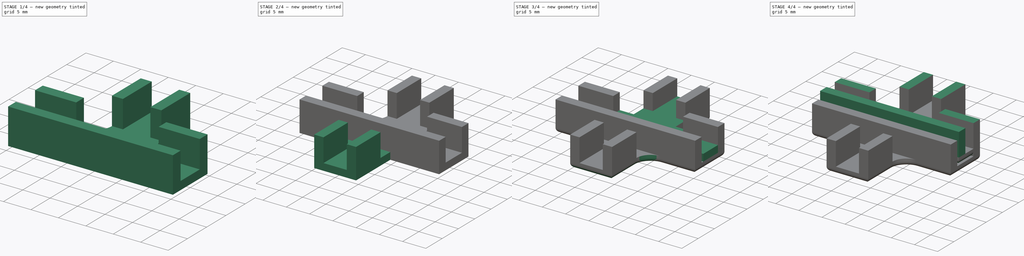
[diagram: build sequence overview — one tinted view per stage of 4, left to right]
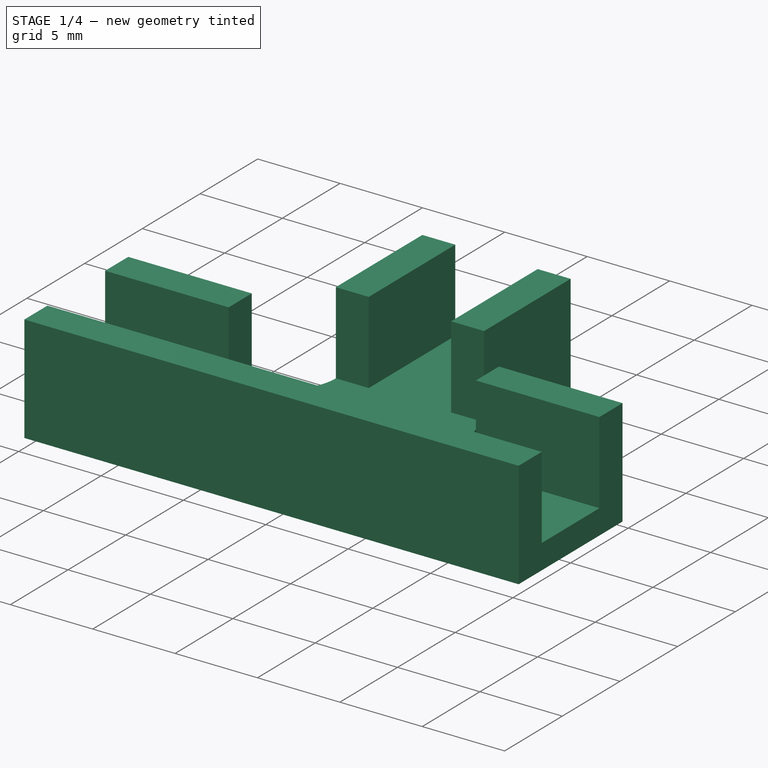
[diagram: stage 1 of 4 — iso view after this stage's code; geometry added in this stage tinted green]
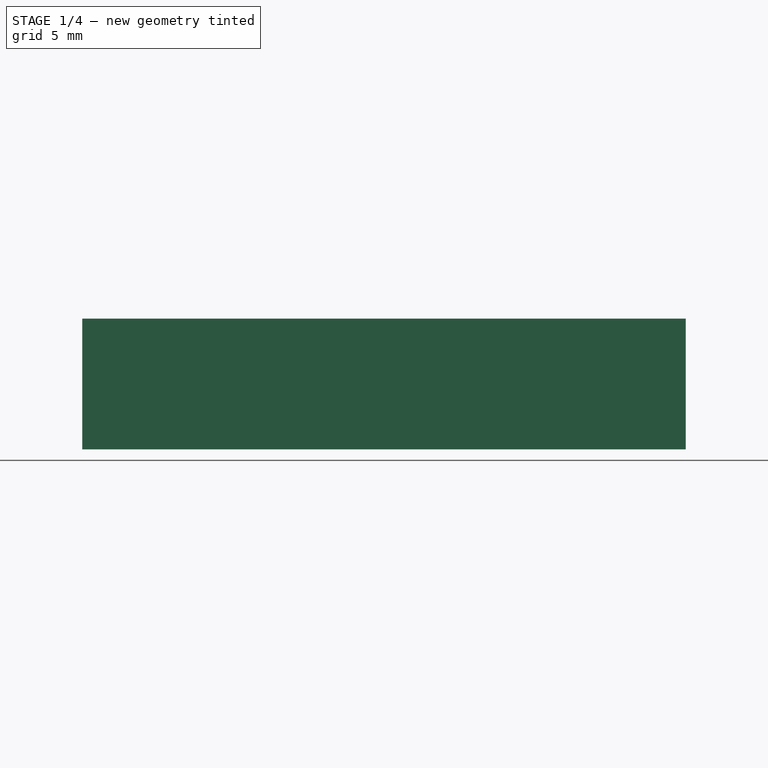
[diagram: stage 1 of 4 — front view after this stage's code; geometry added in this stage tinted green]
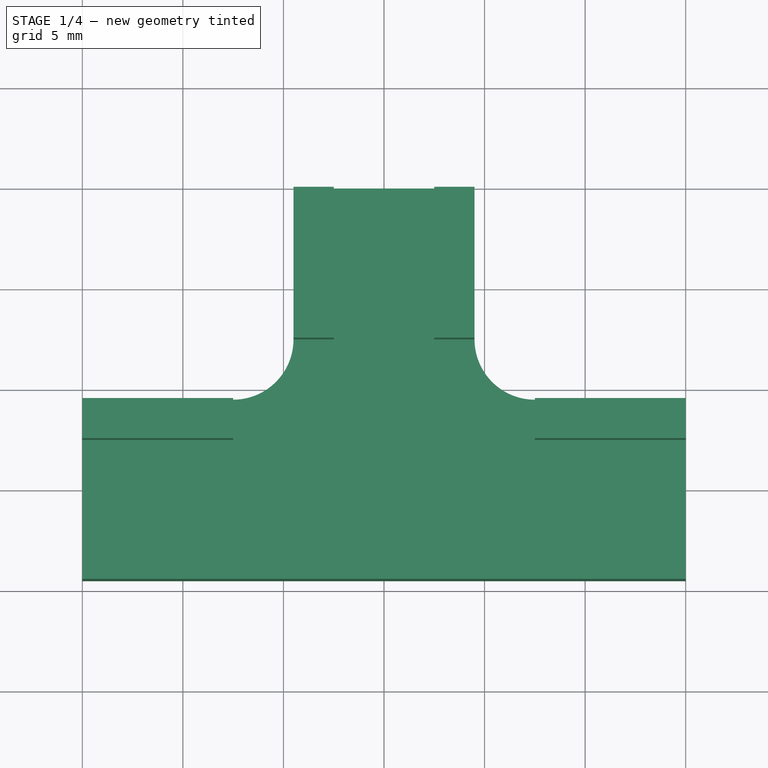
[diagram: stage 1 of 4 — top view after this stage's code; geometry added in this stage tinted green]
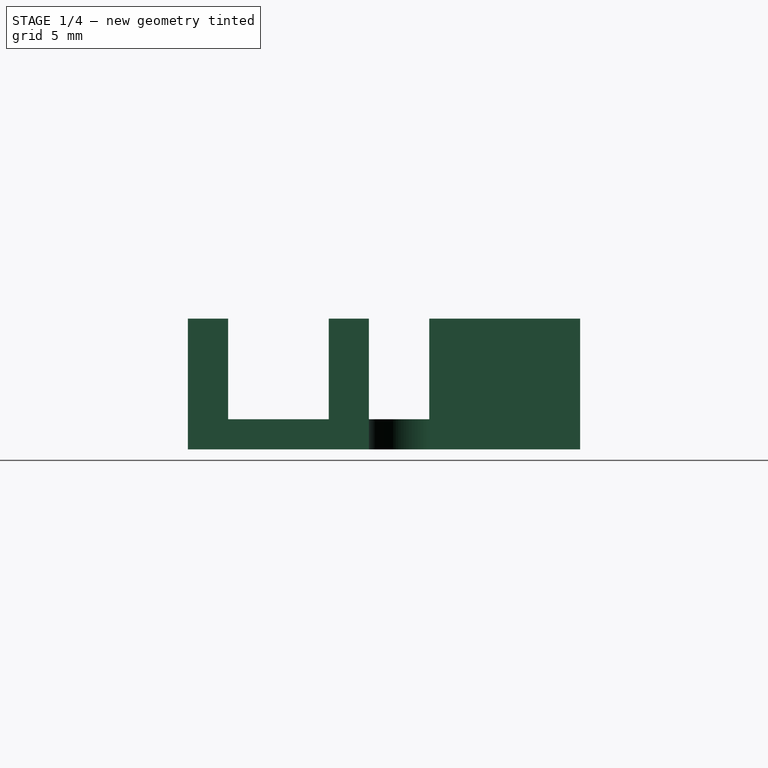
[diagram: stage 1 of 4 — right view after this stage's code; geometry added in this stage tinted green]
FCSTD DOCUMENT  (FreeCAD 0.18R16131 (Git))
Label: box-connectors
License: All rights reserved
LicenseURL: http://en.wikipedia.org/wiki/All_rights_reserved
objects: Sketcher::SketchObject×6, PartDesign::Pad×6, PartDesign::Fillet×6, PartDesign::Body×3, App::Part×3, Spreadsheet::Sheet×1
note: 27 computed .brp shape members not serialized (recipe doc carries the construction recipe); baked Part::Feature solids carry a one-line shape summary decoded from their .brp

FEATURE [PartDesign::Body] Body001  label="B_X"
  Group = -> [Sketch002,Pad002,Sketch003,Pad003,Fillet001,Fillet003]
  Origin = -> Origin003
  Tip = -> Fillet003
FEATURE [App::Part] Part001  label="X"
  Group = -> [Body001]
  Origin = -> Origin002
FEATURE [Sketcher::SketchObject] Sketch004  label="S_T2"
  MapMode = 5
  Support = -> [XY_Plane005]
  expr: Constraints[20] = sheet.gapp_width / 2 + sheet.wall_width
  expr: Constraints[15] = sheet.bridge_length
  expr: Constraints[16] = sheet.bridge_length
  expr: Constraints[22] = Spreadsheet.bridge_width / 2
  expr: Constraints[17] = sheet.bridge_width
  expr: Constraints[14] = sheet.bridge_length
  sketch-geometry (8):
    g0: LineSegment StartX=-15 StartY=-4.5 StartZ=0 EndX=15 EndY=-4.5 EndZ=0
    g1: LineSegment StartX=15 StartY=-4.5 StartZ=0 EndX=15 EndY=4.5 EndZ=0
    g2: LineSegment StartX=15 StartY=4.5 StartZ=0 EndX=4.5 EndY=4.5 EndZ=0
    g3: LineSegment StartX=4.5 StartY=4.5 StartZ=0 EndX=4.5 EndY=15 EndZ=0
    g4: LineSegment StartX=4.5 StartY=15 StartZ=0 EndX=-4.5 EndY=15 EndZ=0
    g5: LineSegment StartX=-4.5 StartY=15 StartZ=0 EndX=-4.5 EndY=4.5 EndZ=0
    g6: LineSegment StartX=-4.5 StartY=4.5 StartZ=0 EndX=-15 EndY=4.5 EndZ=0
    g7: LineSegment StartX=-15 StartY=4.5 StartZ=0 EndX=-15 EndY=-4.5 EndZ=0
  constraints (23):
    c: Horizontal(g0)
    c: Coincident(g1,g0)
    c: Coincident(g2,g1)
    c: Horizontal(g2)
    c: Coincident(g3,g2)
    c: Vertical(g3)
    c: Coincident(g4,g3)
    c: Coincident(g5,g4)
    c: Vertical(g5)
    c: Coincident(g6,g5)
    c: Horizontal(g6)
    c: Coincident(g7,g6)
    c: Coincident(g7,g0)
    c: Vertical(g7)
    c: Distance(g-1,g4) = 15
    c: Distance(g-1,g7) = 15
    c: Distance(g-1,g1) = 15
    c: Distance(g4) = 9
    c: Symmetric(g5,g2,g-2)
    c: Horizontal(g4)
    c: Distance(g6,g-1) = 4.5
    c: Vertical(g1)
    c: Distance(g0,g-1) = 4.5
FEATURE [PartDesign::Pad] Pad004
  Length = 1.5
  Length2 = 100
  Profile = -> Sketch004
  Type = 0
  expr: Length = sheet.bridge_height
FEATURE [PartDesign::Body] Body  label="B_T"
  Group = -> [Sketch,Pad,Sketch001,Pad001,Fillet,Fillet002]
  Origin = -> Origin001
  Tip = -> Fillet002
FEATURE [App::Part] Part  label="T"
  Group = -> [Body]
  Origin = -> Origin
FEATURE [PartDesign::Pad] Pad005
  BaseFeature = -> Pad004
  Length = 5
  Length2 = 100
  Profile = -> Sketch005
  Type = 0
  expr: Length = sheet.wall_height
FEATURE [PartDesign::Fillet] Fillet004
  Base = -> Pad005 [Edge44,Edge23]
  BaseFeature = -> Pad005
  Radius = 3
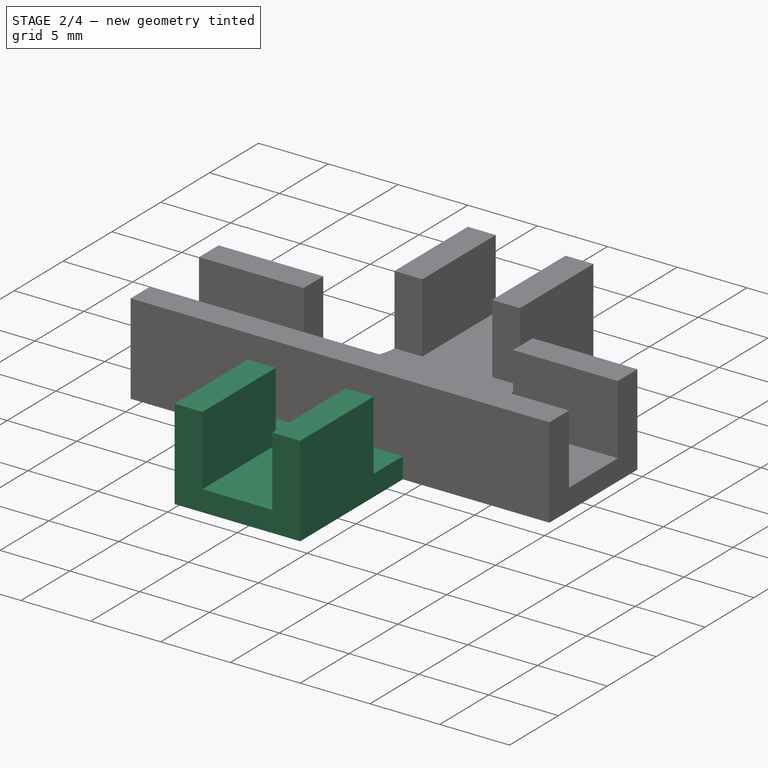
[diagram: stage 2 of 4 — iso view after this stage's code; geometry added in this stage tinted green]
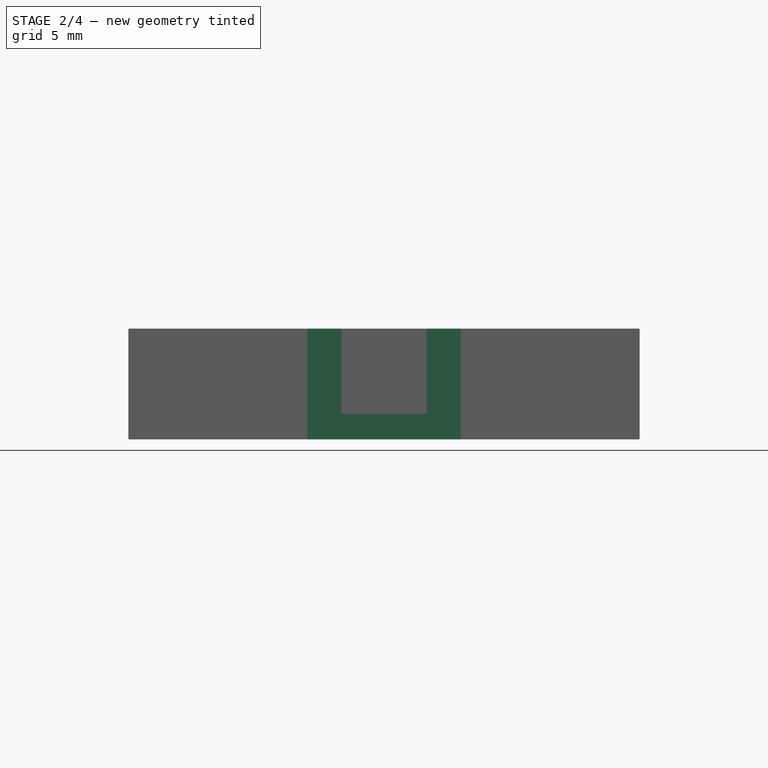
[diagram: stage 2 of 4 — front view after this stage's code; geometry added in this stage tinted green]
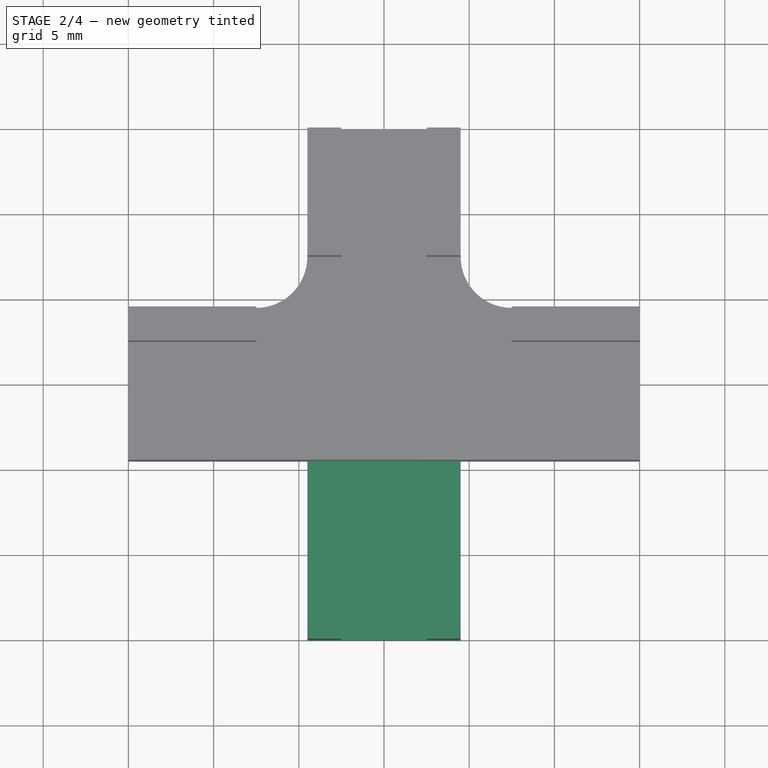
[diagram: stage 2 of 4 — top view after this stage's code; geometry added in this stage tinted green]
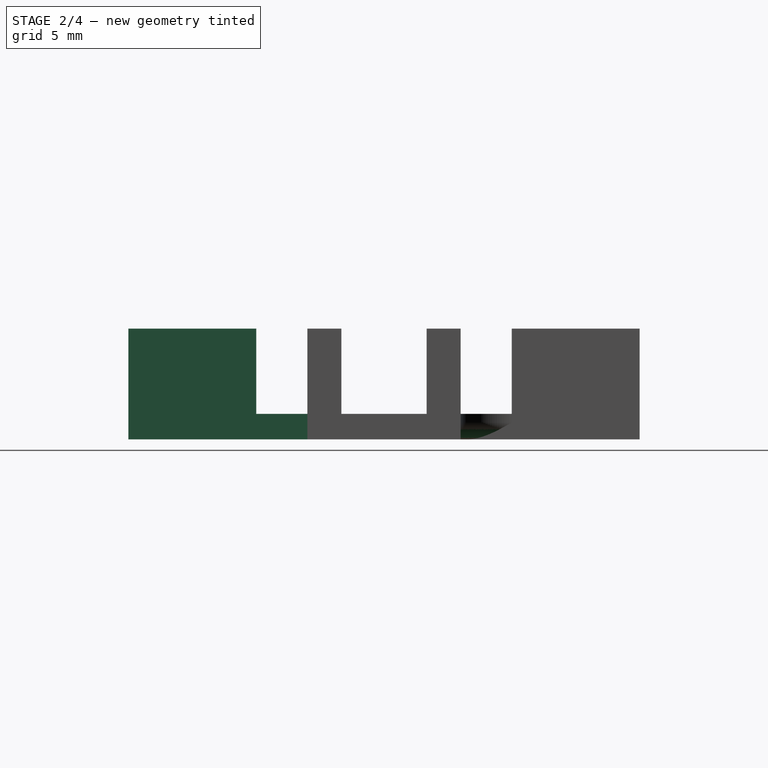
[diagram: stage 2 of 4 — right view after this stage's code; geometry added in this stage tinted green]
FEATURE [Spreadsheet::Sheet] Spreadsheet  label="sheet"
  cells = B2=gapp_width; C2(gapp_width)==5mm; B3=wall_height; C3(wall_height)==5mm; B4=wall_width; C4(wall_width)==2mm; B5=wall_length; C5(wall_length)==7.5mm; B6=bridge_length; C6(bridge_length)==15mm; B7=bridge_width; C7(bridge_width)==9mm; B8=bridge_height; C8(bridge_height)==1.5mm
FEATURE [Sketcher::SketchObject] Sketch002  label="S_X_Base"
  MapMode = 5
  Support = -> [XY_Plane003]
  expr: Constraints[30] = sheet.bridge_length
  expr: Constraints[28] = sheet.bridge_width
  expr: Constraints[17] = sheet.bridge_width
  expr: Constraints[12] = sheet.bridge_length
  expr: Constraints[13] = sheet.bridge_length
  expr: Constraints[16] = sheet.bridge_width
  expr: Constraints[10] = sheet.bridge_width
  expr: Constraints[11] = sheet.bridge_length
  sketch-geometry (12):
    g0: LineSegment StartX=15 StartY=-4.5 StartZ=0 EndX=15 EndY=4.5 EndZ=0
    g1: LineSegment StartX=15 StartY=4.5 StartZ=0 EndX=4.5 EndY=4.5 EndZ=0
    g2: LineSegment StartX=4.5 StartY=4.5 StartZ=0 EndX=4.5 EndY=15 EndZ=0
    g3: LineSegment StartX=4.5 StartY=15 StartZ=0 EndX=-4.5 EndY=15 EndZ=0
    g4: LineSegment StartX=-4.5 StartY=15 StartZ=0 EndX=-4.5 EndY=4.5 EndZ=0
    g5: LineSegment StartX=-4.5 StartY=4.5 StartZ=0 EndX=-15 EndY=4.5 EndZ=0
    g6: LineSegment StartX=-15 StartY=4.5 StartZ=0 EndX=-15 EndY=-4.5 EndZ=0
    g7: LineSegment StartX=-15 StartY=-4.5 StartZ=0 EndX=-4.5 EndY=-4.5 EndZ=0
    g8: LineSegment StartX=-4.5 StartY=-4.5 StartZ=0 EndX=-4.5 EndY=-15 EndZ=0
    g9: LineSegment StartX=-4.5 StartY=-15 StartZ=0 EndX=4.5 EndY=-15 EndZ=0
    g10: LineSegment StartX=4.5 StartY=-15 StartZ=0 EndX=4.5 EndY=-4.5 EndZ=0
    g11: LineSegment StartX=4.5 StartY=-4.5 StartZ=0 EndX=15 EndY=-4.5 EndZ=0
  constraints (32):
    c: Coincident(g1,g0)
    c: Horizontal(g1)
    c: Coincident(g2,g1)
    c: Vertical(g2)
    c: Coincident(g3,g2)
    c: Coincident(g4,g3)
    c: Vertical(g4)
    c: Coincident(g5,g4)
    c: Horizontal(g5)
    c: Coincident(g6,g5)
    c: Distance(g0) = 9
    c: Distance(g-1,g3) = 15
    c: Distance(g-1,g6) = 15
    c: Distance(g-1,g0) = 15
    c: Symmetric(g0,g0,g-1)
    c: Symmetric(g2,g3,g-2)
    c: Distance(g3) = 9
    c: Distance(g6) = 9
    c: Coincident(g7,g6)
    c: Horizontal(g7)
    c: Coincident(g8,g7)
    c: Vertical(g8)
    c: Coincident(g9,g8)
    c: Coincident(g10,g9)
    c: Vertical(g10)
    c: Coincident(g11,g10)
    c: Coincident(g11,g0)
    c: Horizontal(g11)
    c: Distance(g9) = 9
    c: Symmetric(g9,g8,g-2)
    c: Distance(g-1,g9) = 15
    c: Symmetric(g6,g5,g-1)
FEATURE [PartDesign::Pad] Pad002
  Length = 1.5
  Length2 = 100
  Profile = -> Sketch002
  Type = 0
  expr: Length = sheet.bridge_height
FEATURE [Sketcher::SketchObject] Sketch003
  MapMode = 5
  Placement = pos=(0,0,1.5) rot=(0,0,1;0rad)
  Support = -> [Pad002]
  expr: Constraints[91] = sheet.gapp_width
  expr: Constraints[89] = sheet.bridge_length
  expr: Constraints[88] = sheet.gapp_width
  expr: Constraints[86] = sheet.bridge_length
  expr: Constraints[85] = sheet.gapp_width
  expr: Constraints[84] = sheet.bridge_length
  expr: Constraints[80] = sheet.gapp_width
  expr: Constraints[79] = sheet.wall_length
  expr: Constraints[78] = sheet.wall_width
  expr: Constraints[82] = sheet.bridge_length
  sketch-geometry (32):
    g0: LineSegment StartX=-4.5 StartY=15 StartZ=0 EndX=-2.5 EndY=15 EndZ=0
    g1: LineSegment StartX=-2.5 StartY=15 StartZ=0 EndX=-2.5 EndY=7.5 EndZ=0
    g2: LineSegment StartX=-2.5 StartY=7.5 StartZ=0 EndX=-4.5 EndY=7.5 EndZ=0
    g3: LineSegment StartX=-4.5 StartY=7.5 StartZ=0 EndX=-4.5 EndY=15 EndZ=0
    g4: LineSegment StartX=4.5 StartY=15 StartZ=0 EndX=2.5 EndY=15 EndZ=0
    g5: LineSegment StartX=2.5 StartY=15 StartZ=0 EndX=2.5 EndY=7.5 EndZ=0
    g6: LineSegment StartX=2.5 StartY=7.5 StartZ=0 EndX=4.5 EndY=7.5 EndZ=0
    g7: LineSegment StartX=4.5 StartY=7.5 StartZ=0 EndX=4.5 EndY=15 EndZ=0
    g8: LineSegment StartX=15 StartY=4.5 StartZ=0 EndX=7.5 EndY=4.5 EndZ=0
    g9: LineSegment StartX=7.5 StartY=4.5 StartZ=0 EndX=7.5 EndY=2.5 EndZ=0
    g10: LineSegment StartX=7.5 StartY=2.5 StartZ=0 EndX=15 EndY=2.5 EndZ=0
    g11: LineSegment StartX=15 StartY=2.5 StartZ=0 EndX=15 EndY=4.5 EndZ=0
    g12: LineSegment StartX=7.5 StartY=-2.5 StartZ=0 EndX=15 EndY=-2.5 EndZ=0
    g13: LineSegment StartX=15 StartY=-2.5 StartZ=0 EndX=15 EndY=-4.5 EndZ=0
    g14: LineSegment StartX=15 StartY=-4.5 StartZ=0 EndX=7.5 EndY=-4.5 EndZ=0
    g15: LineSegment StartX=7.5 StartY=-4.5 StartZ=0 EndX=7.5 EndY=-2.5 EndZ=0
    g16: LineSegment StartX=4.5 StartY=-15 StartZ=0 EndX=2.5 EndY=-15 EndZ=0
    g17: LineSegment StartX=2.5 StartY=-15 StartZ=0 EndX=2.5 EndY=-7.5 EndZ=0
    g18: LineSegment StartX=2.5 StartY=-7.5 StartZ=0 EndX=4.5 EndY=-7.5 EndZ=0
    g19: LineSegment StartX=4.5 StartY=-7.5 StartZ=0 EndX=4.5 EndY=-15 EndZ=0
    g20: LineSegment StartX=-4.5 StartY=-15 StartZ=0 EndX=-2.5 EndY=-15 EndZ=0
    g21: LineSegment StartX=-2.5 StartY=-15 StartZ=0 EndX=-2.5 EndY=-7.5 EndZ=0
    g22: LineSegment StartX=-2.5 StartY=-7.5 StartZ=0 EndX=-4.5 EndY=-7.5 EndZ=0
    g23: LineSegment StartX=-4.5 StartY=-7.5 StartZ=0 EndX=-4.5 EndY=-15 EndZ=0
    g24: LineSegment StartX=-7.5 StartY=-4.5 StartZ=0 EndX=-15 EndY=-4.5 EndZ=0
    g25: LineSegment StartX=-15 StartY=-4.5 StartZ=0 EndX=-15 EndY=-2.5 EndZ=0
    g26: LineSegment StartX=-15 StartY=-2.5 StartZ=0 EndX=-7.5 EndY=-2.5 EndZ=0
    g27: LineSegment StartX=-7.5 StartY=-2.5 StartZ=0 EndX=-7.5 EndY=-4.5 EndZ=0
    g28: LineSegment StartX=-15 StartY=2.5 StartZ=0 EndX=-7.5 EndY=2.5 EndZ=0
    g29: LineSegment StartX=-7.5 StartY=2.5 StartZ=0 EndX=-7.5 EndY=4.5 EndZ=0
    g30: LineSegment StartX=-7.5 StartY=4.5 StartZ=0 EndX=-15 EndY=4.5 EndZ=0
    g31: LineSegment StartX=-15 StartY=4.5 StartZ=0 EndX=-15 EndY=2.5 EndZ=0
  constraints (92):
    c: Coincident(g0,g1)
    c: Coincident(g1,g2)
    c: Coincident(g2,g3)
    c: Coincident(g3,g0)
    c: Horizontal(g0)
    c: Horizontal(g2)
    c: Vertical(g1)
    c: Vertical(g3)
    c: Coincident(g4,g5)
    c: Coincident(g5,g6)
    c: Coincident(g6,g7)
    c: Coincident(g7,g4)
    c: Horizontal(g4)
    c: Horizontal(g6)
    c: Vertical(g5)
    c: Vertical(g7)
    c: Coincident(g8,g9)
    c: Coincident(g9,g10)
    c: Coincident(g10,g11)
    c: Coincident(g11,g8)
    c: Horizontal(g8)
    c: Horizontal(g10)
    c: Vertical(g9)
    c: Vertical(g11)
    c: Coincident(g12,g13)
    c: Coincident(g13,g14)
    c: Coincident(g14,g15)
    c: Coincident(g15,g12)
    c: Horizontal(g12)
    c: Horizontal(g14)
    c: Vertical(g13)
    c: Vertical(g15)
    c: Coincident(g16,g17)
    c: Coincident(g17,g18)
    c: Coincident(g18,g19)
    c: Coincident(g19,g16)
    c: Horizontal(g16)
    c: Horizontal(g18)
    c: Vertical(g17)
    c: Vertical(g19)
    c: Coincident(g20,g21)
    c: Coincident(g21,g22)
    c: Coincident(g22,g23)
    c: Coincident(g23,g20)
    c: Horizontal(g20)
    c: Horizontal(g22)
    c: Vertical(g21)
    c: Vertical(g23)
    c: Coincident(g24,g25)
    c: Coincident(g25,g26)
    c: Coincident(g26,g27)
    c: Coincident(g27,g24)
    c: Horizontal(g24)
    c: Horizontal(g26)
    c: Vertical(g25)
    c: Vertical(g27)
    c: Coincident(g28,g29)
    c: Coincident(g29,g30)
    c: Coincident(g30,g31)
    c: Coincident(g31,g28)
    c: Horizontal(g28)
    c: Horizontal(g30)
    c: Vertical(g29)
    c: Vertical(g31)
    c: Equal(g29,g2)
    c: Equal(g2,g6)
    c: Equal(g6,g9)
    c: Equal(g9,g15)
    c: Equal(g15,g18)
    c: Equal(g18,g22)
    c: Equal(g22,g27)
    c: Equal(g26,g28)
    c: Equal(g28,g1)
    c: Equal(g1,g5)
    c: Equal(g5,g10)
    c: Equal(g10,g12)
    c: Equal(g12,g17)
    c: Equal(g17,g21)
    c: Distance(g31) = 2
    c: Distance(g30) = 7.5
    c: Distance(g28,g25) = 5
    c: Symmetric(g28,g25,g-1)
    c: Distance(g-1,g0) = 15
    c: Symmetric(g0,g4,g-2)
    c: Distance(g-1,g31) = 15
    c: Distance(g4,g0) = 5
    c: Distance(g-1,g11) = 15
    c: Symmetric(g10,g12,g-1)
    c: Distance(g10,g12) = 5
    c: Distance(g-1,g16) = 15
    c: Symmetric(g16,g20,g-2)
    c: Distance(g20,g16) = 5
FEATURE [PartDesign::Pad] Pad003
  BaseFeature = -> Pad002
  Length = 5
  Length2 = 100
  Profile = -> Sketch003
  Type = 0
  expr: Length = sheet.wall_height
FEATURE [PartDesign::Fillet] Fillet005
  Base = -> Fillet004 [Edge5,Edge7,Edge9,Edge10,Edge8,Edge6,Edge4,Edge2,Edge1,Edge3]
  BaseFeature = -> Fillet004
  Radius = 1
FEATURE [PartDesign::Body] Body002  label="B_T2"
  Group = -> [Sketch004,Pad004,Sketch005,Pad005,Fillet004,Fillet005]
  Origin = -> Origin005
  Tip = -> Fillet005
FEATURE [App::Part] Part002  label="T2"
  Group = -> [Body002]
  Origin = -> Origin004
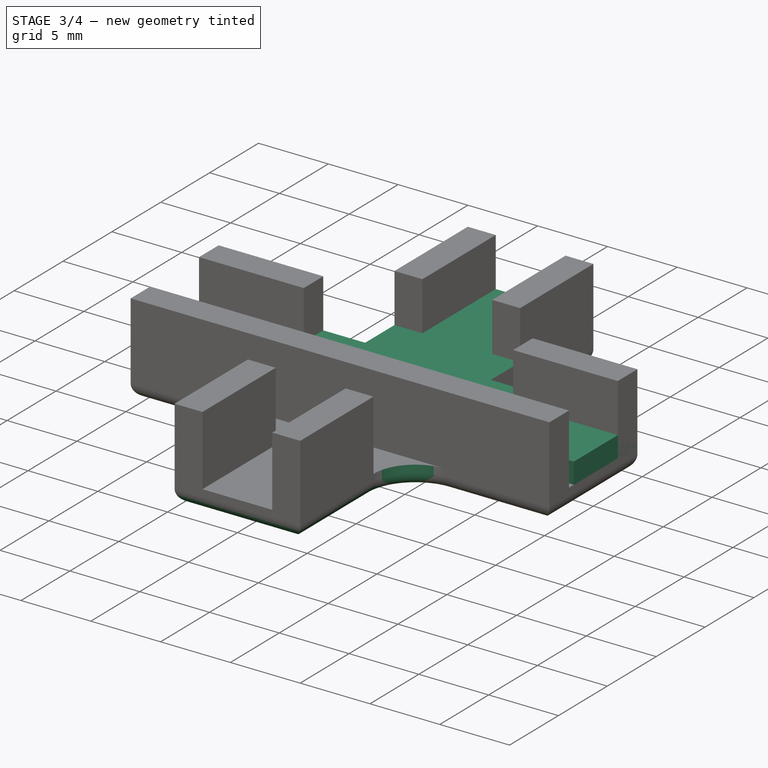
[diagram: stage 3 of 4 — iso view after this stage's code; geometry added in this stage tinted green]
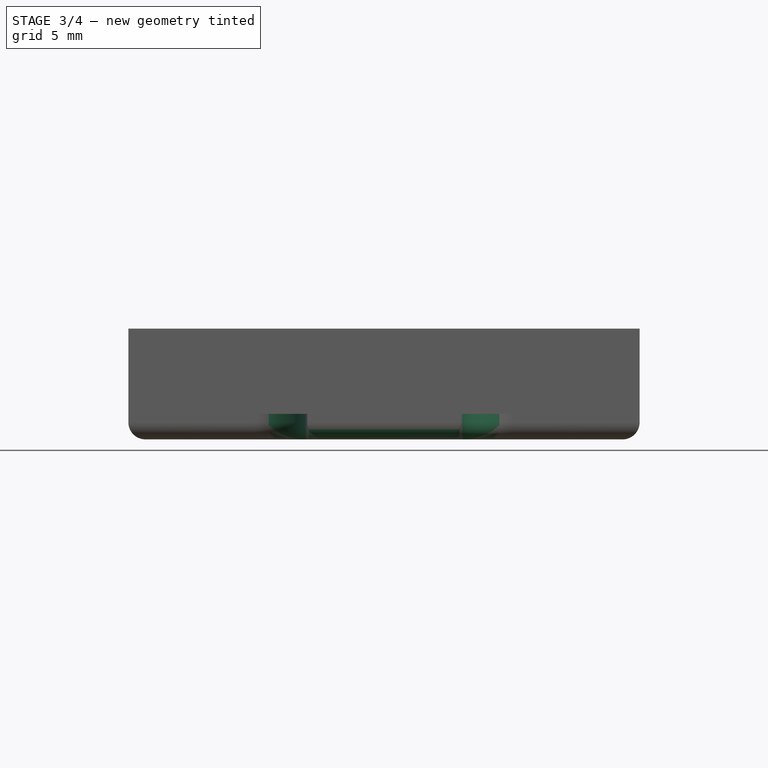
[diagram: stage 3 of 4 — front view after this stage's code; geometry added in this stage tinted green]
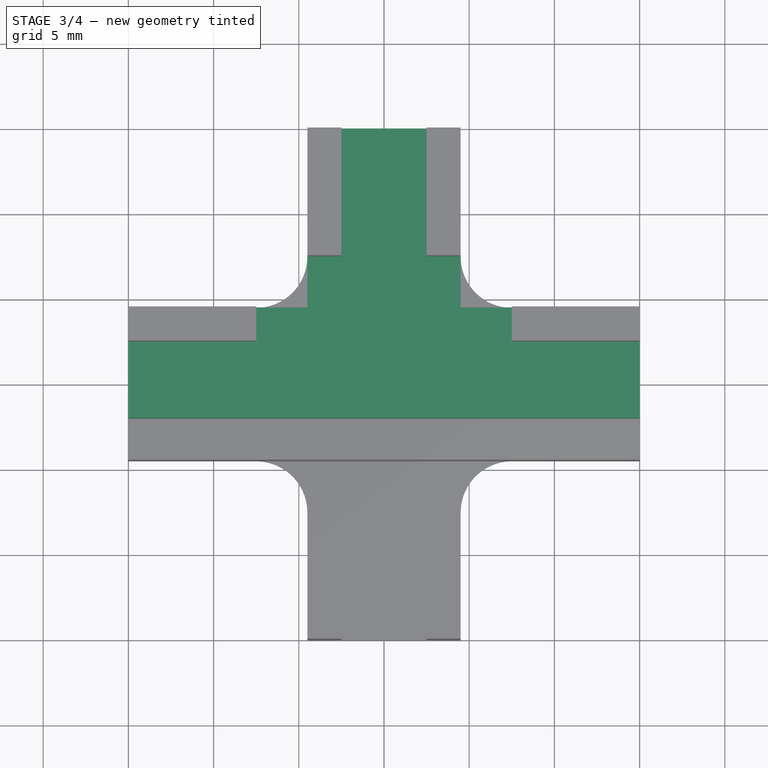
[diagram: stage 3 of 4 — top view after this stage's code; geometry added in this stage tinted green]
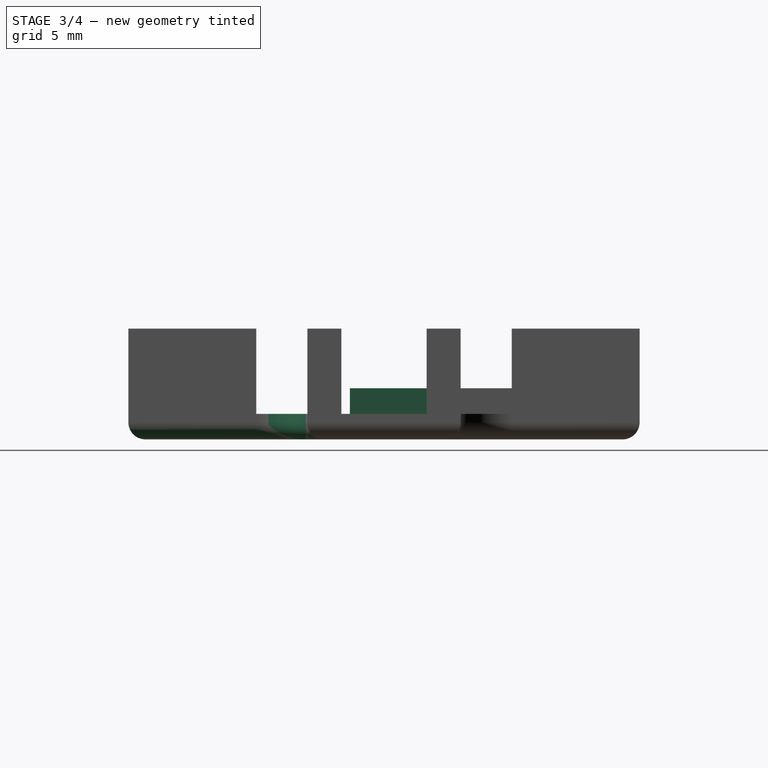
[diagram: stage 3 of 4 — right view after this stage's code; geometry added in this stage tinted green]
FEATURE [PartDesign::Fillet] Fillet001
  Base = -> Pad003 [Edge7,Edge73,Edge66,Edge11]
  BaseFeature = -> Pad003
  Radius = 3
FEATURE [PartDesign::Fillet] Fillet003
  Base = -> Fillet001 [Edge7,Edge5,Edge6,Edge8,Edge9,Edge11,Edge13,Edge15,Edge17,Edge19,Edge18,Edge16,Edge14,Edge12,Edge10,Edge1]
  BaseFeature = -> Fillet001
  Radius = 1
FEATURE [Sketcher::SketchObject] Sketch005
  MapMode = 5
  Placement = pos=(0,0,1.5) rot=(0,0,1;0rad)
  Support = -> [Pad004]
  expr: Constraints[56] = sheet.gapp_width / 2
  expr: Constraints[48] = 2 * sheet.bridge_length
  expr: Constraints[41] = sheet.gapp_width
  expr: Constraints[40] = sheet.bridge_length
  expr: Constraints[42] = sheet.wall_width
  expr: Constraints[53] = sheet.gapp_width / 2
  expr: Constraints[39] = sheet.wall_length
  expr: Constraints[38] = sheet.bridge_length
  sketch-geometry (20):
    g0: LineSegment StartX=-2.5 StartY=7.5 StartZ=0 EndX=-4.5 EndY=7.5 EndZ=0
    g1: LineSegment StartX=-4.5 StartY=7.5 StartZ=0 EndX=-4.5 EndY=15 EndZ=0
    g2: LineSegment StartX=-4.5 StartY=15 StartZ=0 EndX=-2.5 EndY=15 EndZ=0
    g3: LineSegment StartX=-2.5 StartY=15 StartZ=0 EndX=-2.5 EndY=7.5 EndZ=0
    g4: LineSegment StartX=2.5 StartY=7.5 StartZ=0 EndX=4.5 EndY=7.5 EndZ=0
    g5: LineSegment StartX=4.5 StartY=7.5 StartZ=0 EndX=4.5 EndY=15 EndZ=0
    g6: LineSegment StartX=4.5 StartY=15 StartZ=0 EndX=2.5 EndY=15 EndZ=0
    g7: LineSegment StartX=2.5 StartY=15 StartZ=0 EndX=2.5 EndY=7.5 EndZ=0
    g8: LineSegment StartX=7.5 StartY=2.5 StartZ=0 EndX=15 EndY=2.5 EndZ=0
    g9: LineSegment StartX=15 StartY=2.5 StartZ=0 EndX=15 EndY=4.5 EndZ=0
    g10: LineSegment StartX=15 StartY=4.5 StartZ=0 EndX=7.5 EndY=4.5 EndZ=0
    g11: LineSegment StartX=7.5 StartY=4.5 StartZ=0 EndX=7.5 EndY=2.5 EndZ=0
    g12: LineSegment StartX=-7.5 StartY=2.5 StartZ=0 EndX=-15 EndY=2.5 EndZ=0
    g13: LineSegment StartX=-15 StartY=2.5 StartZ=0 EndX=-15 EndY=4.5 EndZ=0
    g14: LineSegment StartX=-15 StartY=4.5 StartZ=0 EndX=-7.5 EndY=4.5 EndZ=0
    g15: LineSegment StartX=-7.5 StartY=4.5 StartZ=0 EndX=-7.5 EndY=2.5 EndZ=0
    g16: LineSegment StartX=-15 StartY=-4.5 StartZ=0 EndX=15 EndY=-4.5 EndZ=0
    g17: LineSegment StartX=15 StartY=-4.5 StartZ=0 EndX=15 EndY=-2.5 EndZ=0
    g18: LineSegment StartX=15 StartY=-2.5 StartZ=0 EndX=-15 EndY=-2.5 EndZ=0
    g19: LineSegment StartX=-15 StartY=-2.5 StartZ=0 EndX=-15 EndY=-4.5 EndZ=0
  constraints (57):
    c: Coincident(g0,g1)
    c: Coincident(g1,g2)
    c: Coincident(g2,g3)
    c: Coincident(g3,g0)
    c: Horizontal(g0)
    c: Horizontal(g2)
    c: Vertical(g1)
    c: Vertical(g3)
    c: Coincident(g4,g5)
    c: Coincident(g5,g6)
    c: Coincident(g6,g7)
    c: Coincident(g7,g4)
    c: Horizontal(g4)
    c: Horizontal(g6)
    c: Vertical(g5)
    c: Vertical(g7)
    c: Coincident(g8,g9)
    c: Coincident(g9,g10)
    c: Coincident(g10,g11)
    c: Coincident(g11,g8)
    c: Horizontal(g8)
    c: Horizontal(g10)
    c: Vertical(g9)
    c: Vertical(g11)
    c: Coincident(g12,g13)
    c: Coincident(g13,g14)
    c: Coincident(g14,g15)
    c: Coincident(g15,g12)
    c: Horizontal(g12)
    c: Horizontal(g14)
    c: Vertical(g13)
    c: Vertical(g15)
    c: Coincident(g16,g17)
    c: Coincident(g17,g18)
    c: Coincident(g18,g19)
    c: Coincident(g19,g16)
    c: Vertical(g17)
    c: Vertical(g19)
    c: Distance(g-1,g2) = 15
    c: Distance(g14) = 7.5
    c: Distance(g-1,g13) = 15
    c: Distance(g2,g6) = 5
    c: Distance(g9) = 2
    c: Symmetric(g2,g6,g-2)
    c: Equal(g9,g4)
    c: Equal(g4,g0)
    c: Equal(g0,g15)
    c: Equal(g15,g19)
    c: Distance(g16) = 30
    c: Symmetric(g12,g8,g-2)
    c: Equal(g14,g1)
    c: Equal(g1,g5)
    c: Equal(g5,g10)
    c: Distance(g12,g-1) = 2.5
    c: Symmetric(g16,g16,g-2)
    c: Horizontal(g18)
    c: Distance(g18,g-1) = 2.5
FEATURE [Sketcher::SketchObject] Sketch  label="S_T_Base"
  MapMode = 2
  Placement = pos=(0,0,1.5) rot=(0,0,1;0rad)
  Support = -> [Sketch005]
  expr: Constraints[20] = sheet.gapp_width / 2 + sheet.wall_width
  expr: Constraints[15] = sheet.bridge_length
  expr: Constraints[16] = sheet.bridge_length
  expr: Constraints[22] = Spreadsheet.wall_width
  expr: Constraints[17] = sheet.bridge_width
  expr: Constraints[14] = sheet.bridge_length
  sketch-geometry (8):
    g0: LineSegment StartX=-15 StartY=-2 StartZ=0 EndX=15 EndY=-2 EndZ=0
    g1: LineSegment StartX=15 StartY=-2 StartZ=0 EndX=15 EndY=4.5 EndZ=0
    g2: LineSegment StartX=15 StartY=4.5 StartZ=0 EndX=4.5 EndY=4.5 EndZ=0
    g3: LineSegment StartX=4.5 StartY=4.5 StartZ=0 EndX=4.5 EndY=15 EndZ=0
    g4: LineSegment StartX=4.5 StartY=15 StartZ=0 EndX=-4.5 EndY=15 EndZ=0
    g5: LineSegment StartX=-4.5 StartY=15 StartZ=0 EndX=-4.5 EndY=4.5 EndZ=0
    g6: LineSegment StartX=-4.5 StartY=4.5 StartZ=0 EndX=-15 EndY=4.5 EndZ=0
    g7: LineSegment StartX=-15 StartY=4.5 StartZ=0 EndX=-15 EndY=-2 EndZ=0
  constraints (23):
    c: Horizontal(g0)
    c: Coincident(g1,g0)
    c: Coincident(g2,g1)
    c: Horizontal(g2)
    c: Coincident(g3,g2)
    c: Vertical(g3)
    c: Coincident(g4,g3)
    c: Coincident(g5,g4)
    c: Vertical(g5)
    c: Coincident(g6,g5)
    c: Horizontal(g6)
    c: Coincident(g7,g6)
    c: Coincident(g7,g0)
    c: Vertical(g7)
    c: Distance(g-1,g4) = 15
    c: Distance(g-1,g7) = 15
    c: Distance(g-1,g1) = 15
    c: Distance(g4) = 9
    c: Symmetric(g5,g2,g-2)
    c: Horizontal(g4)
    c: Distance(g6,g-1) = 4.5
    c: Vertical(g1)
    c: Distance(g0,g-1) = 2
FEATURE [PartDesign::Pad] Pad
  Length = 1.5
  Length2 = 100
  Placement = pos=(0,0,1.5) rot=(0,0,1;0rad)
  Profile = -> Sketch
  Type = 0
  expr: Length = sheet.bridge_height
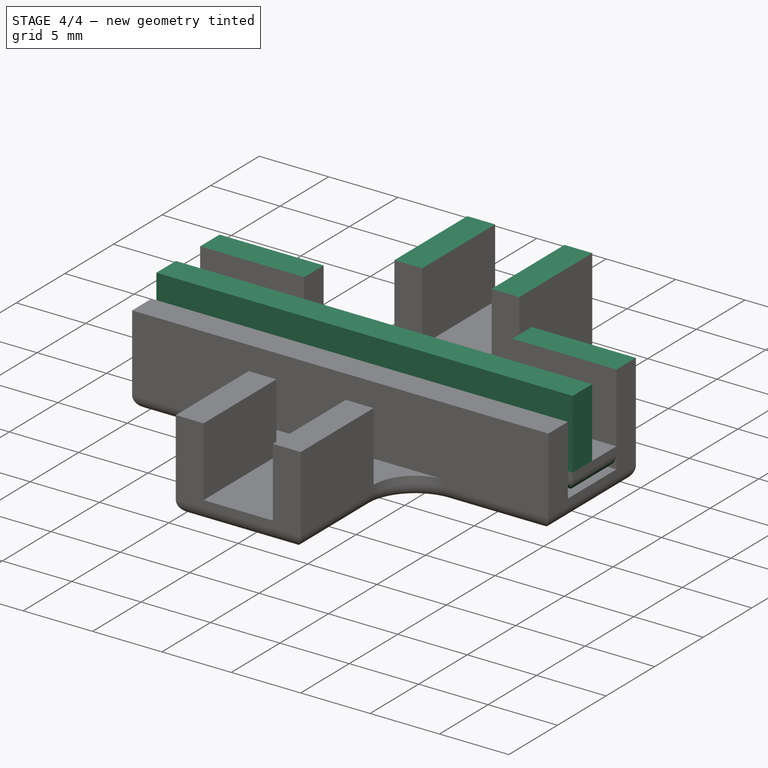
[diagram: stage 4 of 4 — iso view after this stage's code; geometry added in this stage tinted green]
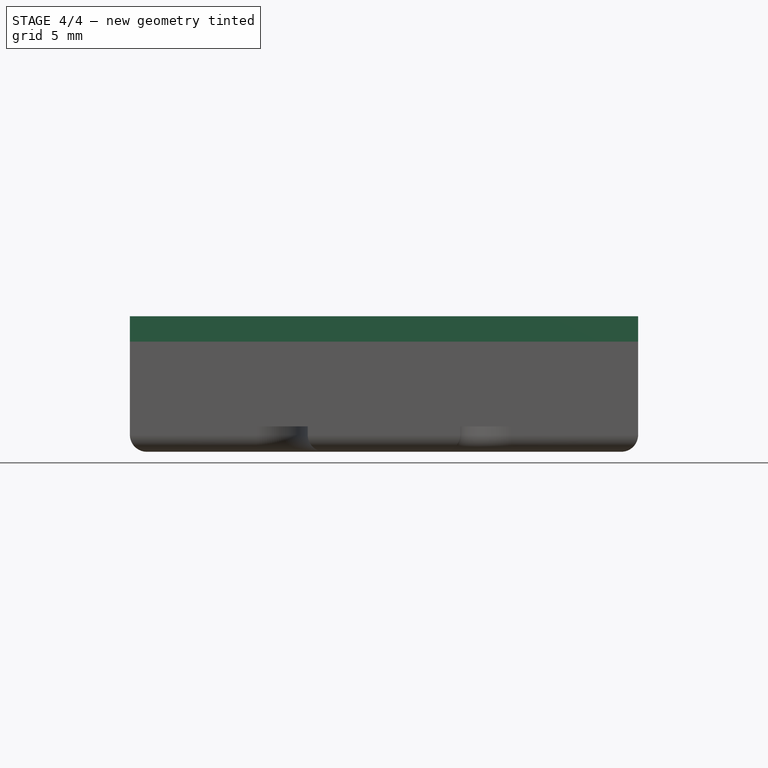
[diagram: stage 4 of 4 — front view after this stage's code; geometry added in this stage tinted green]
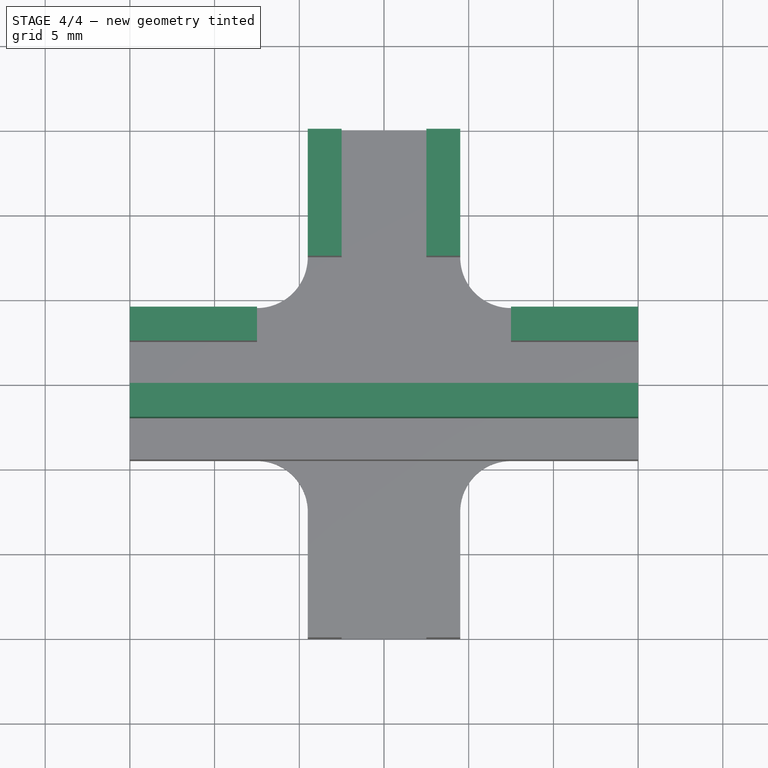
[diagram: stage 4 of 4 — top view after this stage's code; geometry added in this stage tinted green]
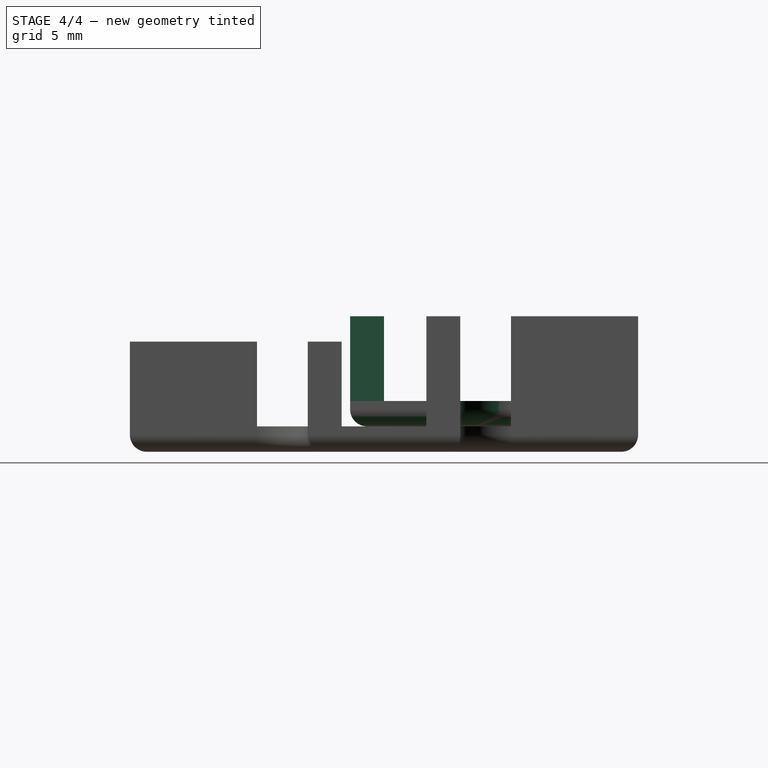
[diagram: stage 4 of 4 — right view after this stage's code; geometry added in this stage tinted green]
FEATURE [Sketcher::SketchObject] Sketch001
  MapMode = 5
  Placement = pos=(0,0,3) rot=(0,0,1;0rad)
  Support = -> [Pad]
  expr: Constraints[56] = sheet.wall_width
  expr: Constraints[48] = 2 * sheet.bridge_length
  expr: Constraints[41] = sheet.gapp_width
  expr: Constraints[40] = sheet.bridge_length
  expr: Constraints[42] = sheet.wall_width
  expr: Constraints[53] = sheet.gapp_width / 2
  expr: Constraints[39] = sheet.wall_length
  expr: Constraints[38] = sheet.bridge_length
  sketch-geometry (20):
    g0: LineSegment StartX=-2.5 StartY=7.5 StartZ=0 EndX=-4.5 EndY=7.5 EndZ=0
    g1: LineSegment StartX=-4.5 StartY=7.5 StartZ=0 EndX=-4.5 EndY=15 EndZ=0
    g2: LineSegment StartX=-4.5 StartY=15 StartZ=0 EndX=-2.5 EndY=15 EndZ=0
    g3: LineSegment StartX=-2.5 StartY=15 StartZ=0 EndX=-2.5 EndY=7.5 EndZ=0
    g4: LineSegment StartX=2.5 StartY=7.5 StartZ=0 EndX=4.5 EndY=7.5 EndZ=0
    g5: LineSegment StartX=4.5 StartY=7.5 StartZ=0 EndX=4.5 EndY=15 EndZ=0
    g6: LineSegment StartX=4.5 StartY=15 StartZ=0 EndX=2.5 EndY=15 EndZ=0
    g7: LineSegment StartX=2.5 StartY=15 StartZ=0 EndX=2.5 EndY=7.5 EndZ=0
    g8: LineSegment StartX=7.5 StartY=2.5 StartZ=0 EndX=15 EndY=2.5 EndZ=0
    g9: LineSegment StartX=15 StartY=2.5 StartZ=0 EndX=15 EndY=4.5 EndZ=0
    g10: LineSegment StartX=15 StartY=4.5 StartZ=0 EndX=7.5 EndY=4.5 EndZ=0
    g11: LineSegment StartX=7.5 StartY=4.5 StartZ=0 EndX=7.5 EndY=2.5 EndZ=0
    g12: LineSegment StartX=-7.5 StartY=2.5 StartZ=0 EndX=-15 EndY=2.5 EndZ=0
    g13: LineSegment StartX=-15 StartY=2.5 StartZ=0 EndX=-15 EndY=4.5 EndZ=0
    g14: LineSegment StartX=-15 StartY=4.5 StartZ=0 EndX=-7.5 EndY=4.5 EndZ=0
    g15: LineSegment StartX=-7.5 StartY=4.5 StartZ=0 EndX=-7.5 EndY=2.5 EndZ=0
    g16: LineSegment StartX=-15 StartY=-2 StartZ=0 EndX=15 EndY=-2 EndZ=0
    g17: LineSegment StartX=15 StartY=-2 StartZ=0 EndX=15 EndY=0 EndZ=0
    g18: LineSegment StartX=15 StartY=0 StartZ=0 EndX=-15 EndY=0 EndZ=0
    g19: LineSegment StartX=-15 StartY=0 StartZ=0 EndX=-15 EndY=-2 EndZ=0
  constraints (57):
    c: Coincident(g0,g1)
    c: Coincident(g1,g2)
    c: Coincident(g2,g3)
    c: Coincident(g3,g0)
    c: Horizontal(g0)
    c: Horizontal(g2)
    c: Vertical(g1)
    c: Vertical(g3)
    c: Coincident(g4,g5)
    c: Coincident(g5,g6)
    c: Coincident(g6,g7)
    c: Coincident(g7,g4)
    c: Horizontal(g4)
    c: Horizontal(g6)
    c: Vertical(g5)
    c: Vertical(g7)
    c: Coincident(g8,g9)
    c: Coincident(g9,g10)
    c: Coincident(g10,g11)
    c: Coincident(g11,g8)
    c: Horizontal(g8)
    c: Horizontal(g10)
    c: Vertical(g9)
    c: Vertical(g11)
    c: Coincident(g12,g13)
    c: Coincident(g13,g14)
    c: Coincident(g14,g15)
    c: Coincident(g15,g12)
    c: Horizontal(g12)
    c: Horizontal(g14)
    c: Vertical(g13)
    c: Vertical(g15)
    c: Coincident(g16,g17)
    c: Coincident(g17,g18)
    c: Coincident(g18,g19)
    c: Coincident(g19,g16)
    c: Vertical(g17)
    c: Vertical(g19)
    c: Distance(g-1,g2) = 15
    c: Distance(g14) = 7.5
    c: Distance(g-1,g13) = 15
    c: Distance(g2,g6) = 5
    c: Distance(g9) = 2
    c: Symmetric(g2,g6,g-2)
    c: Equal(g9,g4)
    c: Equal(g4,g0)
    c: Equal(g0,g15)
    c: Equal(g15,g19)
    c: Distance(g16) = 30
    c: Symmetric(g12,g8,g-2)
    c: Equal(g14,g1)
    c: Equal(g1,g5)
    c: Equal(g5,g10)
    c: Distance(g12,g-1) = 2.5
    c: Symmetric(g16,g16,g-2)
    c: Horizontal(g18)
    c: Distance(g16,g-1) = 2
FEATURE [PartDesign::Pad] Pad001
  BaseFeature = -> Pad
  Length = 5
  Length2 = 100
  Placement = pos=(0,0,1.5) rot=(0,0,1;0rad)
  Profile = -> Sketch001
  Type = 0
  expr: Length = sheet.wall_height
FEATURE [PartDesign::Fillet] Fillet
  Base = -> Pad001 [Edge44,Edge23]
  BaseFeature = -> Pad001
  Placement = pos=(0,0,1.5) rot=(0,0,1;0rad)
  Radius = 3
FEATURE [PartDesign::Fillet] Fillet002
  Base = -> Fillet [Edge6,Edge8,Edge10,Edge9,Edge7,Edge5,Edge3,Edge1,Edge2,Edge4]
  BaseFeature = -> Fillet
  Placement = pos=(0,0,1.5) rot=(0,0,1;0rad)
  Radius = 1
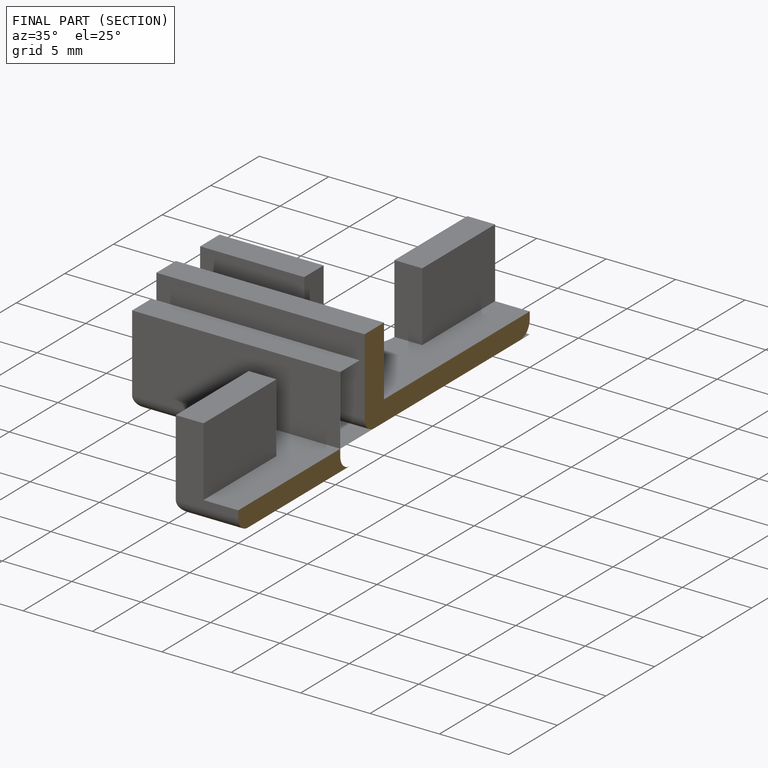
[diagram: finished part — half-section view (interior)]
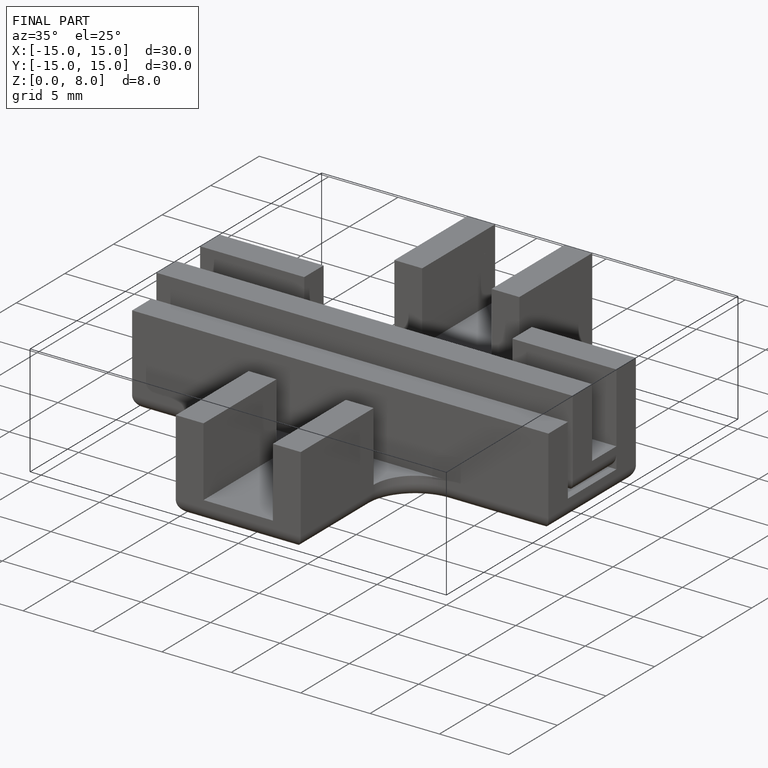
[diagram: finished part — iso view with bounding-box wireframe]
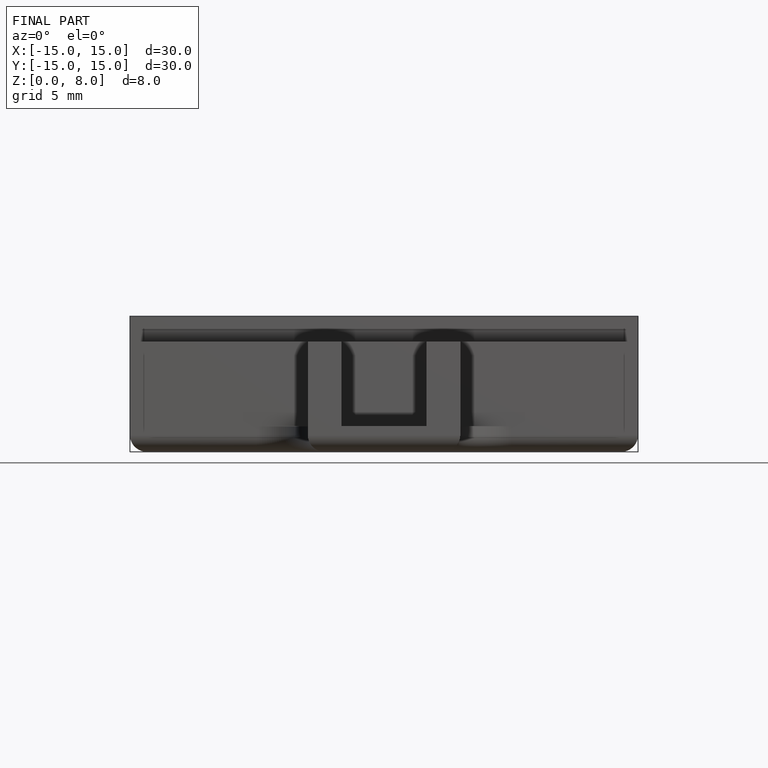
[diagram: finished part — front view with bounding-box wireframe]
